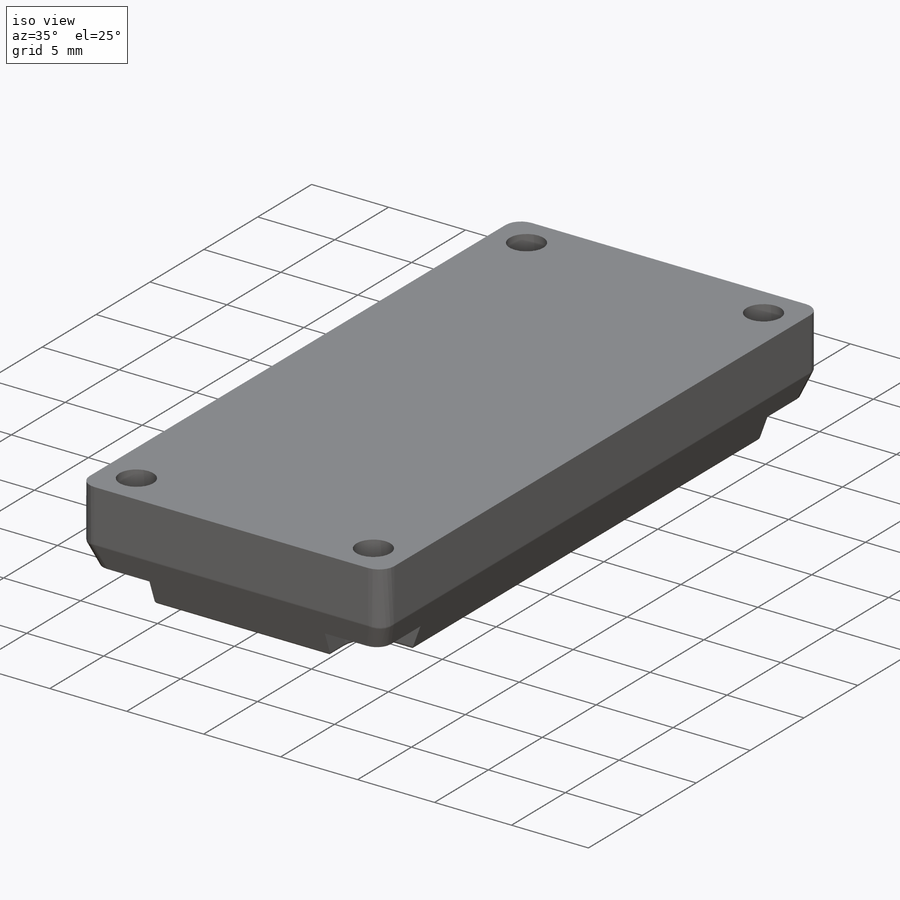
[diagram: iso view]
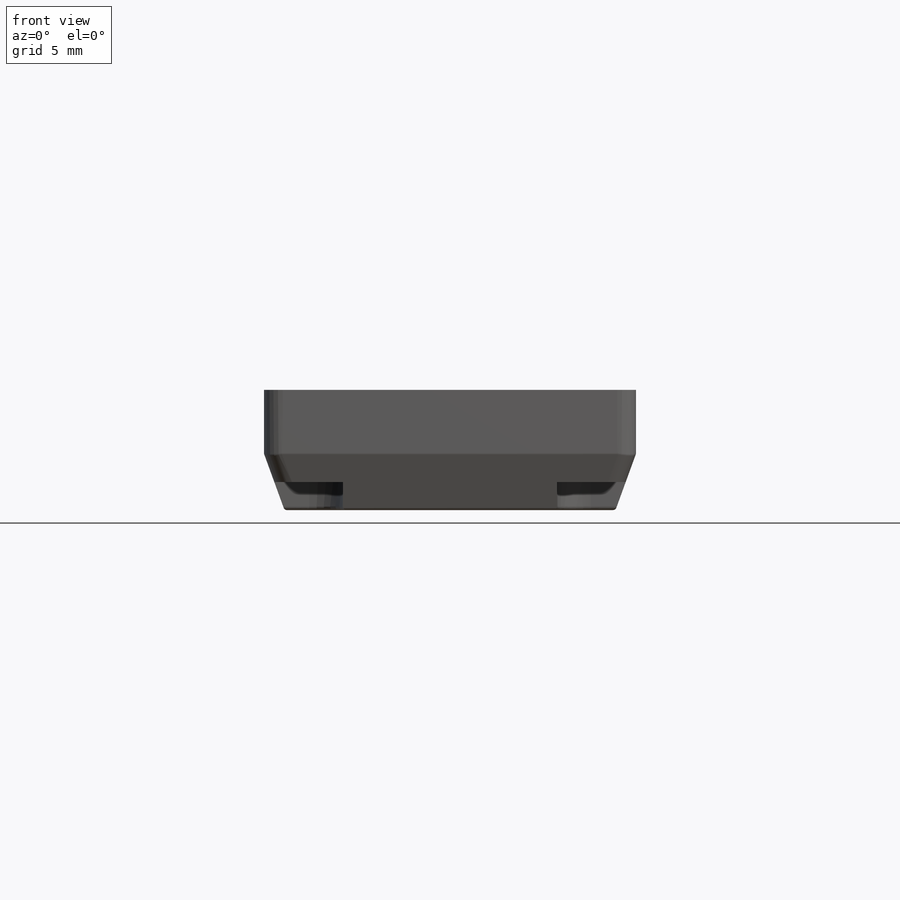
[diagram: front view]
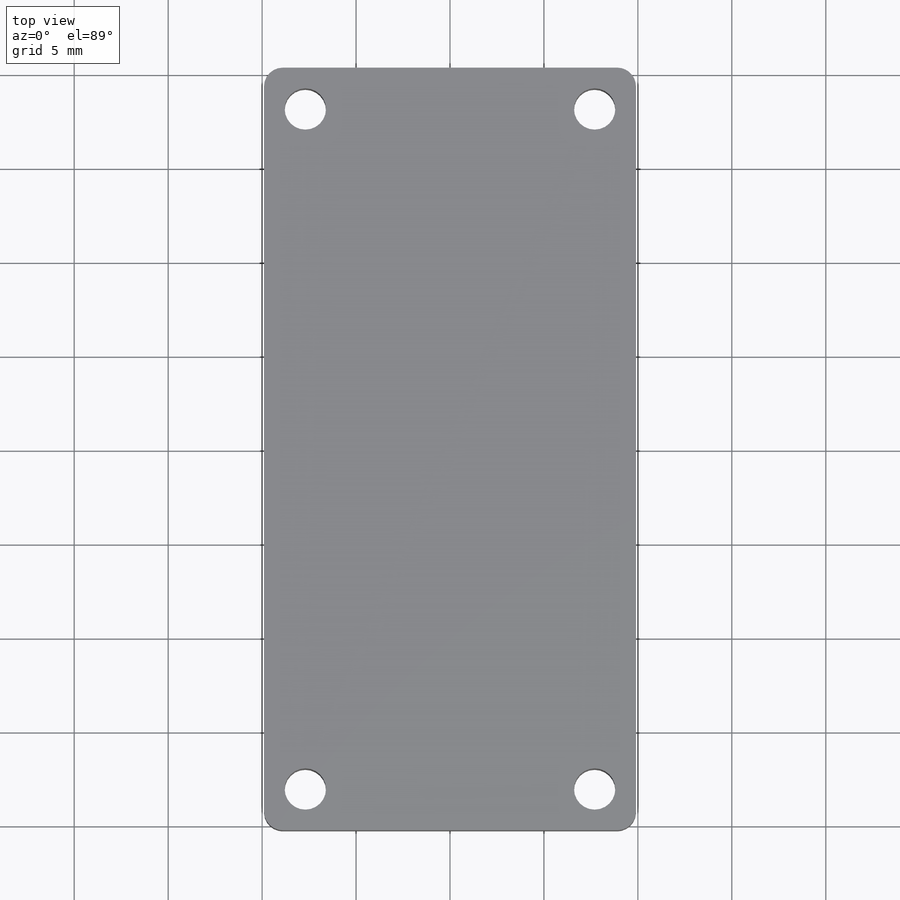
[diagram: top view]
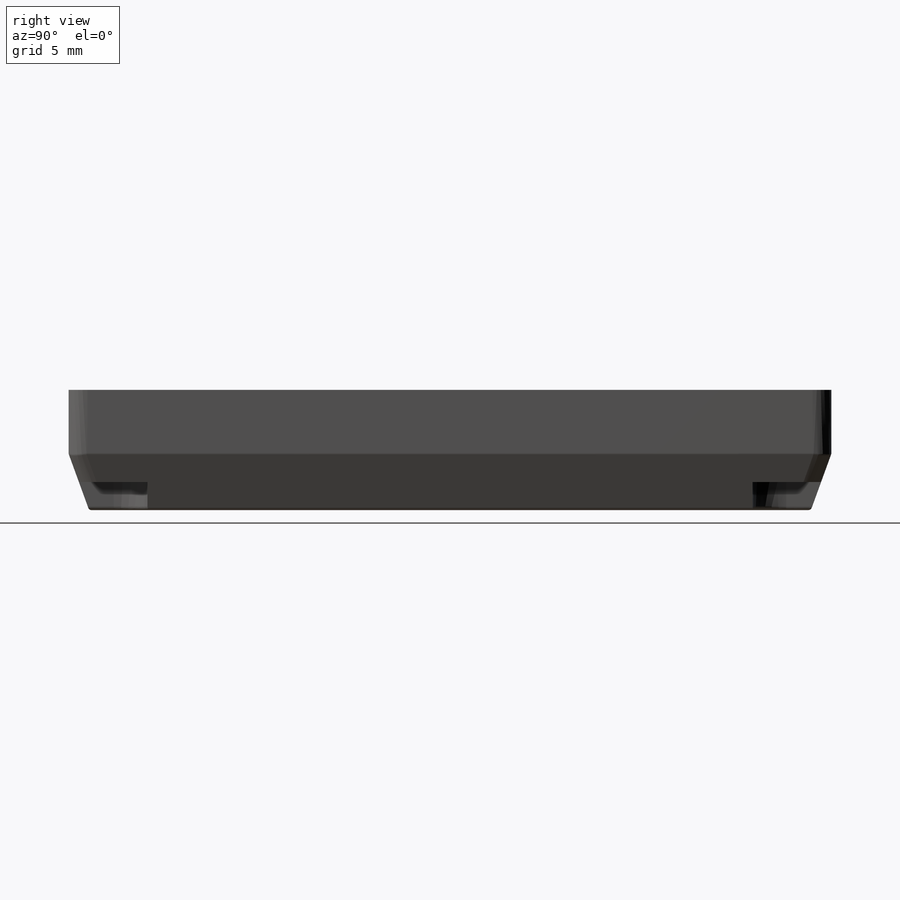
[diagram: right view]
SOLIDWORKS PART (.sldprt)
format: sldprt  version: not decoded by parser v0  size: 378,880 bytes
history: native  units: mm
features: sketch x6, mirror x4, cut_extrude x3, fillet x2, material x1, extrude x1, hole x1 (+13 scaffold rows collapsed)
feature tree (31):
  scaffold x13  (default folders/planes/origin — collapsed)
  material  "Polyethylene Cross-Linked"
  sketch  "Sketch1"  dims[D1=19.8mm D2=40.6mm]
  extrude  "Boss-Extrude1"  Depth=6.4mm
  sketch  "Sketch2"  dims[D3=3.6mm D1=4.2mm D2=4.2mm]
  cut_extrude  "Cut-Extrude1"  Depth=1.5mm
  hole  "M2 Clearance Hole1"  Diameter=2.2mm Depth=4.9mm
  sketch  "Sketch8"  dims[D1=2.2mm D2=2.2mm]
  sketch  "Sketch7"  dims[hole-wizard template sketch: 60 standard entries collapsed; hole parameters kept: c18.Thru Hole Depth=4.9mm]
  mirror  "Mirror1"
  mirror  "Mirror2"
  sketch  "Sketch3"  dims[c1.D1=3.0mm c1.D2=3.0mm c2.D2=20.0deg]
  cut_extrude  "Cut-Extrude2"  Depth=10mm
  mirror  "Mirror3"
  sketch  "Sketch4"  dims[c1.D1=3.0mm c1.D2=~3.373991mm c2.D2=20.0deg]
  cut_extrude  "Cut-Extrude3"  Depth=10mm
  mirror  "Mirror4"
  fillet  "Fillet1"  Radius=1mm
  fillet  "Fillet2"  Radius=0.2mm
decode coverage: 13 of 17 modeling features carry decoded parameters
note: ~ marks probable driven/reference dimensions
note: suppression state not decoded; provenance and decode notes live in map.json
